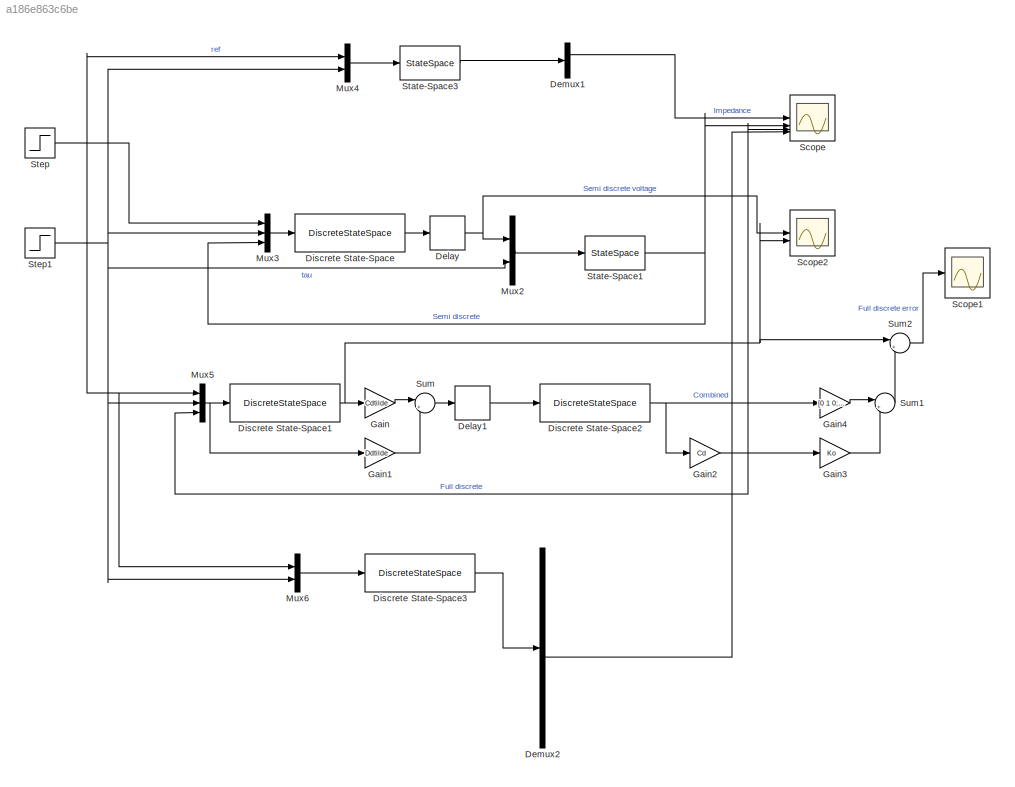
MODEL slx_a186e863c6be
KIND model
CONFIG AbsTol = auto
CONFIG EnableMultiTasking = off
CONFIG FixedStep = auto
CONFIG MaxStep = auto
CONFIG MinStep = auto
CONFIG RelTol = 1e-3
CONFIG SampleTimeConstraint = Unconstrained
CONFIG SolverName = VariableStepAuto
CONFIG StartTime = 0.0
CONFIG StopTime = 1
BLOCK [Delay] Delay
  DelayLength = 1
  InitialCondition = 0
  InputPortMap = u0
BLOCK [Delay] Delay1
  DelayLength = 1
  InitialCondition = 0
  InputPortMap = u0
BLOCK [Demux] Demux1
  Outputs = 2
BLOCK [Demux] Demux2
  Outputs = 10
BLOCK [DiscreteStateSpace] Discrete State-Space
  A = Adtilde
  B = Bdtilde
  C = Cdtilde
  D = Ddtilde
  InitialCondition = nutildei
  SampleTime = t_d
BLOCK [DiscreteStateSpace] Discrete State-Space1
  A = Adtilde
  B = Bdtilde
  C = eye(2)
  D = zeros([2, 3])
  InitialCondition = nutildei
  SampleTime = t_d
BLOCK [DiscreteStateSpace] Discrete State-Space2
  A = Ad
  B = Bd
  C = eye(3)
  D = zeros([3, 1])
  InitialCondition = xi
  SampleTime = t_d
BLOCK [DiscreteStateSpace] Discrete State-Space3
  A = AAd
  B = zeros([10, 2])
  C = eye(10)
  D = zeros([10, 2])
  InitialCondition = [zeros(5, 1); xi; ei]
  SampleTime = t_d
BLOCK [Gain] Gain
  Gain = Cdtilde
  Multiplication = Matrix(K*u) (u vector)
BLOCK [Gain] Gain1
  Gain = Ddtilde
  Multiplication = Matrix(K*u) (u vector)
BLOCK [Gain] Gain2
  Gain = Cd
  Multiplication = Matrix(K*u) (u vector)
BLOCK [Gain] Gain3
  Gain = Ko
  Multiplication = Matrix(K*u) (u vector)
BLOCK [Gain] Gain4
  Gain = [0 1 0; 0 0 1]
  Multiplication = Matrix(K*u) (u vector)
BLOCK [Mux] Mux2
  DisplayOption = bar
  Inputs = 2
BLOCK [Mux] Mux3
  DisplayOption = bar
  Inputs = 3
BLOCK [Mux] Mux4
  DisplayOption = bar
  Inputs = 2
BLOCK [Mux] Mux5
  DisplayOption = bar
  Inputs = 3
BLOCK [Mux] Mux6
  DisplayOption = bar
  Inputs = 2
BLOCK [Scope] Scope
  Floating = off
  NumInputPorts = 4
  ScopeSpecificationString = Simulink.scopes.TimeScopeBlockCfg('CurrentConfiguration', extmgr.ConfigurationSet(extmgr.Configuration('Core','General UI',true),extmgr.Configuration('Core','Source UI',true),extmgr.Configuration('Sources','WiredSimulink',true),extmgr.Configuration('Visuals','Time Domain',true,'SerializedDisplays',{struct('MinYLimReal','-1.16318','MaxYLimReal','1.24035','YLabelReal','','MinYLimMag','0.00000','MaxY...<+1579ch>
BLOCK [Scope] Scope1
  Floating = off
  NumInputPorts = 1
  ScopeSpecificationString = Simulink.scopes.TimeScopeBlockCfg('CurrentConfiguration', extmgr.ConfigurationSet(extmgr.Configuration('Core','General UI',true),extmgr.Configuration('Core','Source UI',true),extmgr.Configuration('Sources','WiredSimulink',true,'DataLoggingVariableName','ScopeData1'),extmgr.Configuration('Visuals','Time Domain',true,'SerializedDisplays',{struct('MinYLimReal','-14.60871','MaxYLimReal','2.02543','YLa...<+1594ch>
BLOCK [Scope] Scope2
  Floating = off
  NumInputPorts = 5
  ScopeSpecificationString = Simulink.scopes.TimeScopeBlockCfg('CurrentConfiguration', extmgr.ConfigurationSet(extmgr.Configuration('Core','General UI',true),extmgr.Configuration('Core','Source UI',true),extmgr.Configuration('Sources','WiredSimulink',true,'DataLoggingVariableName','ScopeData1'),extmgr.Configuration('Visuals','Time Domain',true,'SerializedDisplays',{struct('MinYLimReal','-14.47625','MaxYLimReal','4.28625','YLa...<+1682ch>
BLOCK [StateSpace] State-Space1
  A = A
  B = B
  C = C
  D = D
  InitialCondition = xi
BLOCK [StateSpace] State-Space3
  A = Aimp
  B = Bimp
  C = Cimp
  D = Dimp
  InitialCondition = xi(1:2)
BLOCK [Step] Step
  After = 0
  SampleTime = 0
  Time = 0
BLOCK [Step] Step1
  After = 0
  SampleTime = 0
  Time = 0
BLOCK [Sum] Sum
  Inputs = |++
BLOCK [Sum] Sum1
  Inputs = |+-
BLOCK [Sum] Sum2
  Inputs = |+-
LINE Delay1:1 -> Discrete State-Space2:1
NET Delay:1 -> Mux2:1, Scope2:1
LINE Demux1:1 -> Scope:1
LINE Demux2:6 -> Scope:4
NET Discrete State-Space1:1 -> Gain:1, Scope2:2, Sum2:1
NET Discrete State-Space2:1 -> Gain2:1, Gain4:1
LINE Discrete State-Space3:1 -> Demux2:1
LINE Discrete State-Space:1 -> Delay:1
LINE Gain1:1 -> Sum:2
NET Gain2:1 -> Gain3:1, Mux5:3, Scope:3
LINE Gain3:1 -> Sum1:2
LINE Gain4:1 -> Sum1:1
LINE Gain:1 -> Sum:1
LINE Mux2:1 -> State-Space1:1
LINE Mux3:1 -> Discrete State-Space:1
LINE Mux4:1 -> State-Space3:1
NET Mux5:1 -> Discrete State-Space1:1, Gain1:1
LINE Mux6:1 -> Discrete State-Space3:1
NET State-Space1:1 -> Mux3:3, Scope:2
LINE State-Space3:1 -> Demux1:1
NET Step1:1 -> Mux2:2, Mux3:2, Mux4:2, Mux5:2, Mux6:2
NET Step:1 -> Mux3:1, Mux4:1, Mux5:1, Mux6:1
LINE Sum1:1 -> Sum2:2
LINE Sum2:1 -> Scope1:1
LINE Sum:1 -> Delay1:1
note: NET lines group one-source signal fan-out (src -> all destinations, sorted); 1:1 wires keep LINE
